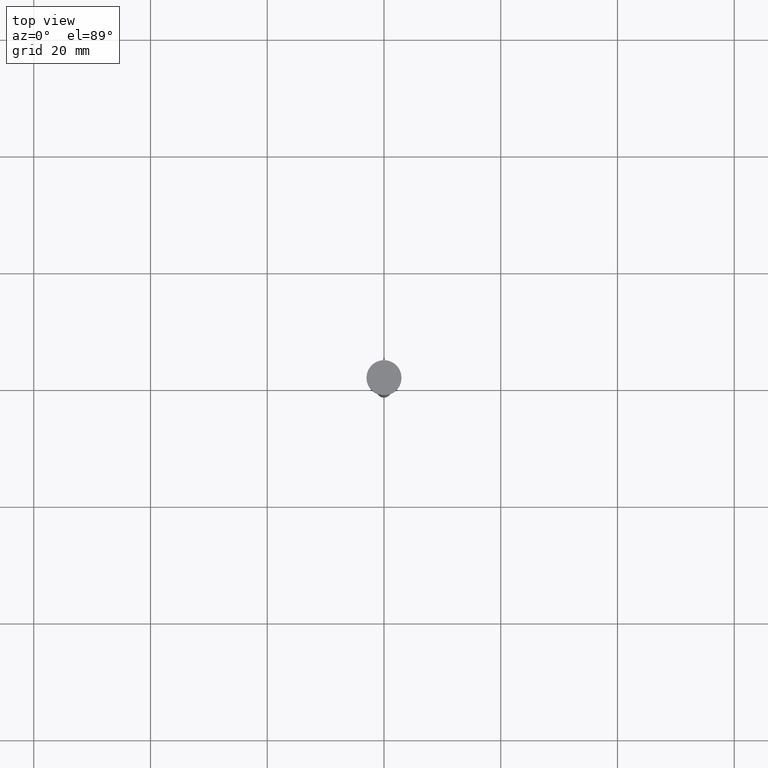
[diagram: clean part render]
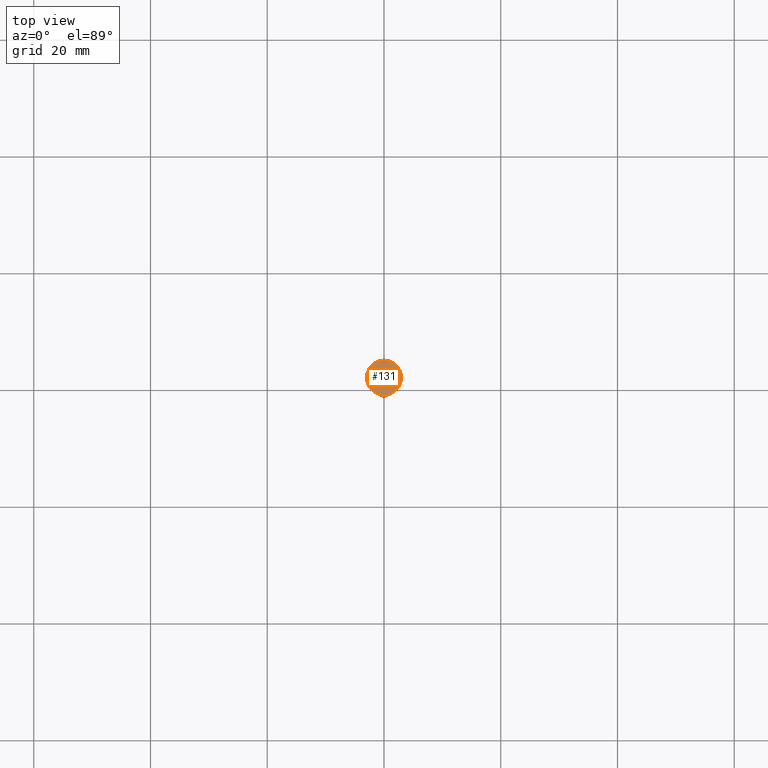
[diagram: same view with one face highlighted and labeled with its STEP entity id]
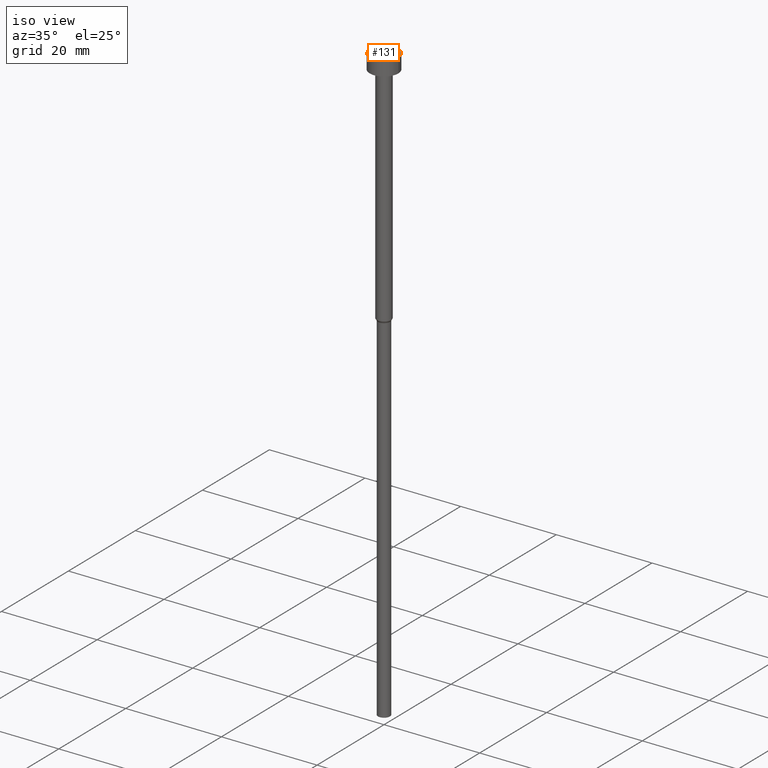
[diagram: same view with one face highlighted and labeled with its STEP entity id]
A machine part, top view. The second image highlights one B-rep face of the part: STEP entity #131.
A second angle (iso view) of the same face is appended — the face is thin or edge-on in the first view.
In plain terms, the highlighted planar face has unit normal (0, -0, 1).
Its self-contained STEP definition (entity closure, byte-faithful):
#11 = DIRECTION ( 'NONE',  ( -0.000000000000000000, -0.000000000000000000, 1.000000000000000000 ) ) ;
#20 = DIRECTION ( 'NONE',  ( 1.000000000000000000, 0.000000000000000000, 0.000000000000000000 ) ) ;
#31 = VERTEX_POINT ( 'NONE', #249 ) ;
#41 = DIRECTION ( 'NONE',  ( 1.000000000000000000, 0.000000000000000000, 0.000000000000000000 ) ) ;
#70 = CARTESIAN_POINT ( 'NONE',  ( 0.000000000000000000, 0.000000000000000000, -1.836970198721029934E-16 ) ) ;
#86 = EDGE_CURVE ( 'NONE', #157, #31, #251, .T. ) ;
#94 = FACE_OUTER_BOUND ( 'NONE', #300, .T. ) ;
#121 = AXIS2_PLACEMENT_3D ( 'NONE', #204, #11, #286 ) ;
#131 = ADVANCED_FACE ( 'NONE', ( #94 ), #309, .T. ) ;
#141 = AXIS2_PLACEMENT_3D ( 'NONE', #146, #234, #20 ) ;
#146 = CARTESIAN_POINT ( 'NONE',  ( 0.000000000000000000, 0.000000000000000000, -3.673940397442059868E-16 ) ) ;
#157 = VERTEX_POINT ( 'NONE', #167 ) ;
#167 = CARTESIAN_POINT ( 'NONE',  ( 3.000000000000000000, 0.000000000000000000, -3.673940397442059868E-16 ) ) ;
#204 = CARTESIAN_POINT ( 'NONE',  ( 0.000000000000000000, 0.000000000000000000, -3.673940397442059868E-16 ) ) ;
#234 = DIRECTION ( 'NONE',  ( -0.000000000000000000, -0.000000000000000000, 1.000000000000000000 ) ) ;
#241 = EDGE_CURVE ( 'NONE', #31, #157, #296, .T. ) ;
#249 = CARTESIAN_POINT ( 'NONE',  ( -3.000000000000000000, 3.673940397442059868E-16, -3.673940397442059868E-16 ) ) ;
#251 = CIRCLE ( 'NONE', #121, 3.000000000000000000 ) ;
#255 = AXIS2_PLACEMENT_3D ( 'NONE', #70, #284, #41 ) ;
#284 = DIRECTION ( 'NONE',  ( 0.000000000000000000, -0.000000000000000000, 1.000000000000000000 ) ) ;
#286 = DIRECTION ( 'NONE',  ( 1.000000000000000000, 0.000000000000000000, 0.000000000000000000 ) ) ;
#295 = ORIENTED_EDGE ( 'NONE', *, *, #86, .T. ) ;
#296 = CIRCLE ( 'NONE', #141, 3.000000000000000000 ) ;
#297 = ORIENTED_EDGE ( 'NONE', *, *, #241, .T. ) ;
#300 = EDGE_LOOP ( 'NONE', ( #295, #297 ) ) ;
#309 = PLANE ( 'NONE',  #255 ) ;